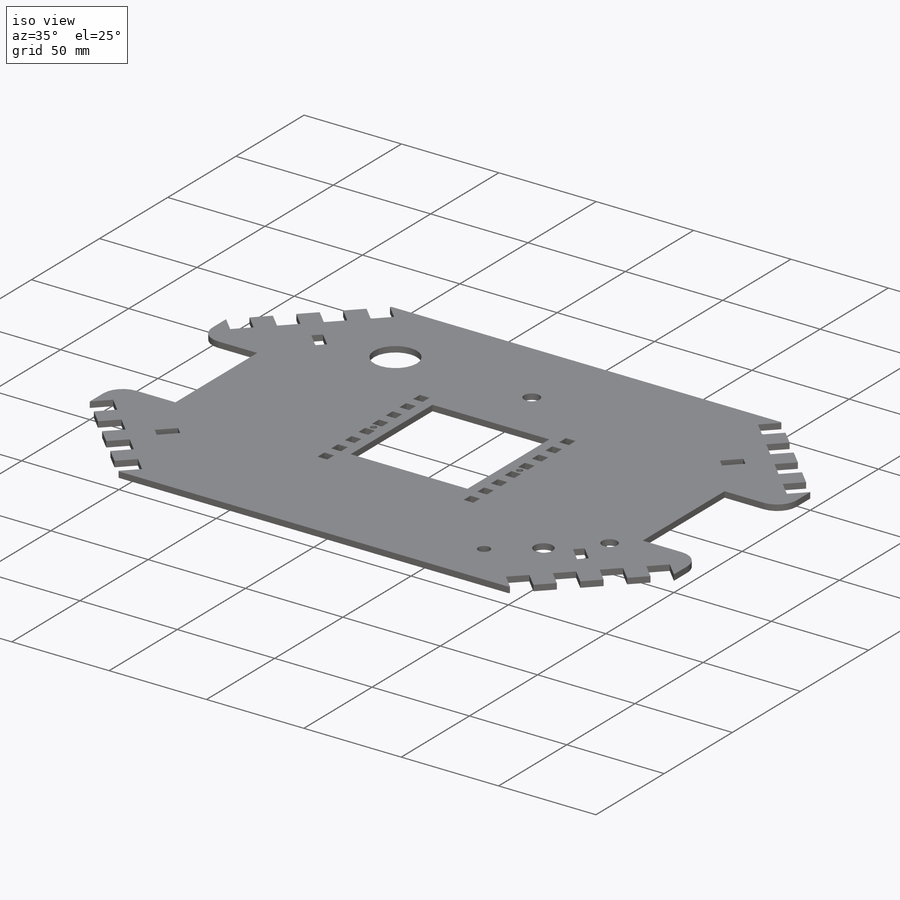
[diagram: iso view]
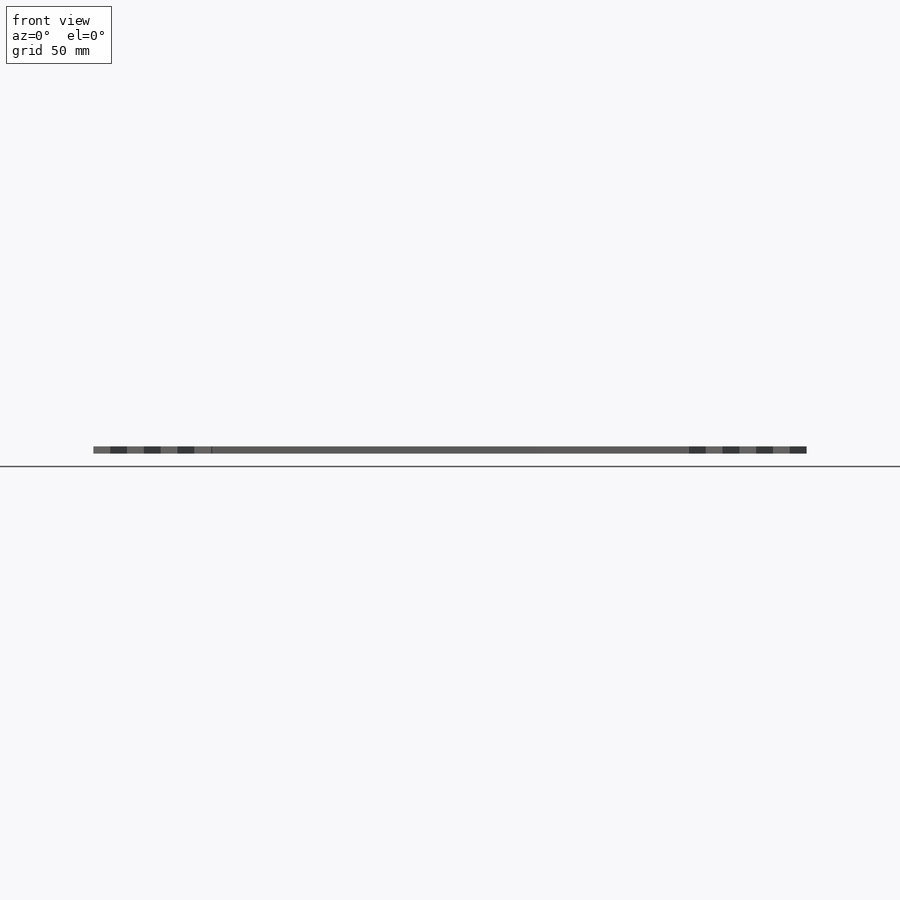
[diagram: front view]
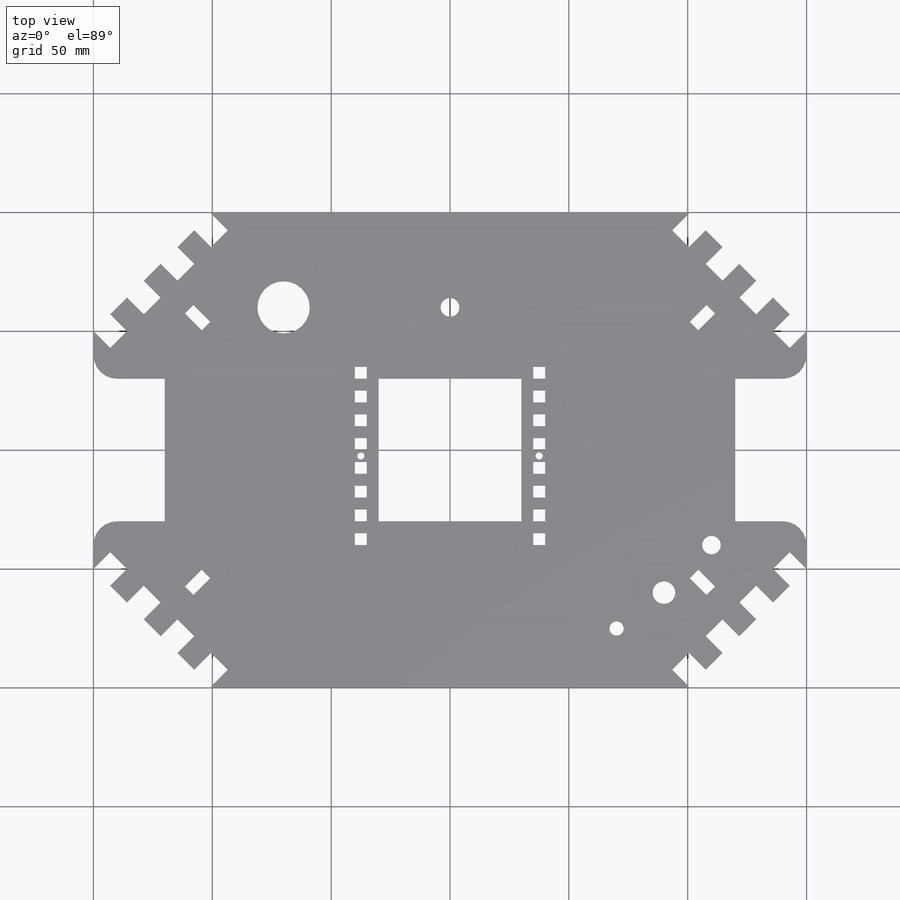
[diagram: top view]
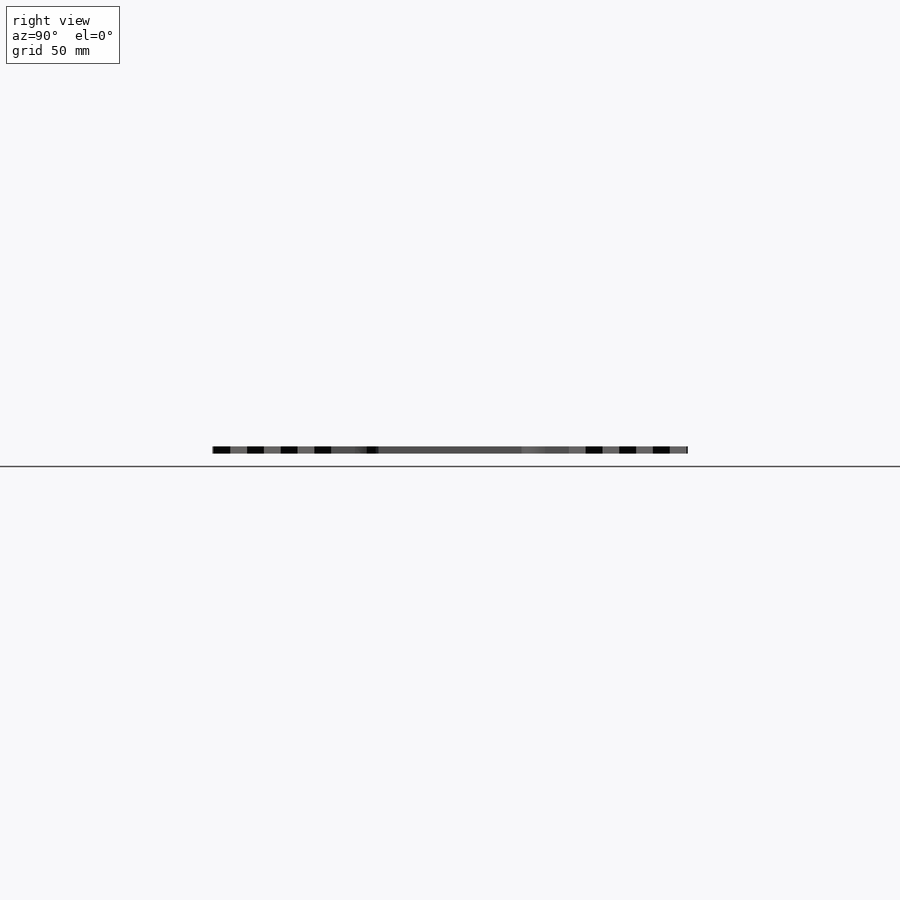
[diagram: right view]
SOLIDWORKS PART (.sldprt)
format: sldprt  version: not decoded by parser v0  size: 741,376 bytes
history: native  units: mm
features: sketch x9, cut_extrude x8, plane x3, pattern_linear x2, mirror x2, material x1, extrude x1, fillet x1 (+10 scaffold rows collapsed)
feature tree (37):
  scaffold x10  (default folders/planes/origin — collapsed)
  material  "Balsa"
  plane  "Plan de face"
  plane  "Plan de dessus"
  plane  "Plan de droite"
  sketch  "Esquisse1"  dims[D1=300.0mm D2=200.0mm D3=150.0mm D4=100.0mm]
  extrude  "Boss.-Extru.1"  Depth=3mm
  sketch  "Esquisse2"  dims[D1=50.0mm D2=50.0mm D3=50.0mm D4=50.0mm D5=50.0mm D6=50.0mm D7=50.0mm D8=50.0mm]
  cut_extrude  "Enlèv. mat.-Extru.1"  Depth=10mm
  sketch  "Esquisse3"  dims[c1.D1=5.0mm c1.D2=5.0mm c1.D3=40.0mm c1.D4=~52.110669mm c2.D3=40.0mm c2.D4=40.0mm]
  cut_extrude  "Enlèv. mat.-Extru.2"  Depth=10mm
  pattern_linear  "Répétition linéaire1"  Count1=2 Count2=8 Spacing1=75mm Spacing2=10mm
  sketch  "Esquisse6"  dims[D1=10.0mm D2=10.0mm D3=0.0mm]
  cut_extrude  "Enlèv. mat.-Extru.5"  Depth=10mm
  pattern_linear  "Répétition linéaire2"  Count1=4 Count2=1 Spacing1=20mm Spacing2=10mm
  mirror  "Symétrie1"
  sketch  "Esquisse9"  dims[c1.D1=3.0mm c1.D2=3.0mm c1.D3=3.0mm c1.D4=~3.214575mm c1.D5=3.0mm c1.D6=3.0mm c2.D1=3.0mm c2.D2=2.5mm c2.D3=2.5mm c2.D4=2.5mm c2.D6=2.5mm c3.D1=2.5mm]
  cut_extrude  "Enlèv. mat.-Extru.8"  Depth=10mm
  mirror  "Symétrie2"
  sketch  "Esquisse11"  dims[c1.D1=22.0mm c1.D2=22.0mm c1.D3=~10.071467mm c1.D4=6.0mm c1.D5=9.5mm c1.D6=6.0mm c1.D8=6.0mm c2.D6=12.0mm c2.D10=7.8mm c2.D11=6.0mm c2.D3=6.0mm c2.D12=7.9mm c2.D2=80.0mm c3.D3=22.0mm c3.D6=20.0mm c3.D7=60.0mm c3.D8=60.0mm c4.D3=13.0mm c4.D4=8.0mm c4.D6=4.0mm c4.D9=20.0mm c4.D10=~23.681401mm c4.D11=122.0mm c5.D3=30.0mm c5.D4=40.0mm c5.D6=40.0mm c5.D9=25.0mm c5.D11=140.0mm c5.D13=40.0mm c6.D4=40.0mm]
  cut_extrude  "Enlèv. mat.-Extru.10"  Depth=10mm
  sketch  "Esquisse12"  dims[D1=30.0mm D2=60.0mm D3=30.0mm D4=60.0mm]
  cut_extrude  "Enlèv. mat.-Extru.11"  Depth=10mm
  sketch  "Esquisse13"  dims[D1=60.0mm D2=30.0mm D3=12.93mm D4=~12.927864mm]
  cut_extrude  "Enlèv. mat.-Extru.12"  Depth=10mm
  sketch  "Esquisse15"  dims[c1.D5=3.0mm c1.D1=10.0mm c1.D2=5.0mm c1.D3=12.0mm c1.D4=32.5mm c2.D5=5.0mm c2.D6=8.1mm c2.D7=2.5mm]
  cut_extrude  "Enlèv. mat.-Extru.14"  Depth=10mm
  fillet  "Congé1"  Radius=10mm
decode coverage: 21 of 23 modeling features carry decoded parameters
note: ~ marks probable driven/reference dimensions
note: suppression state not decoded; provenance and decode notes live in map.json
